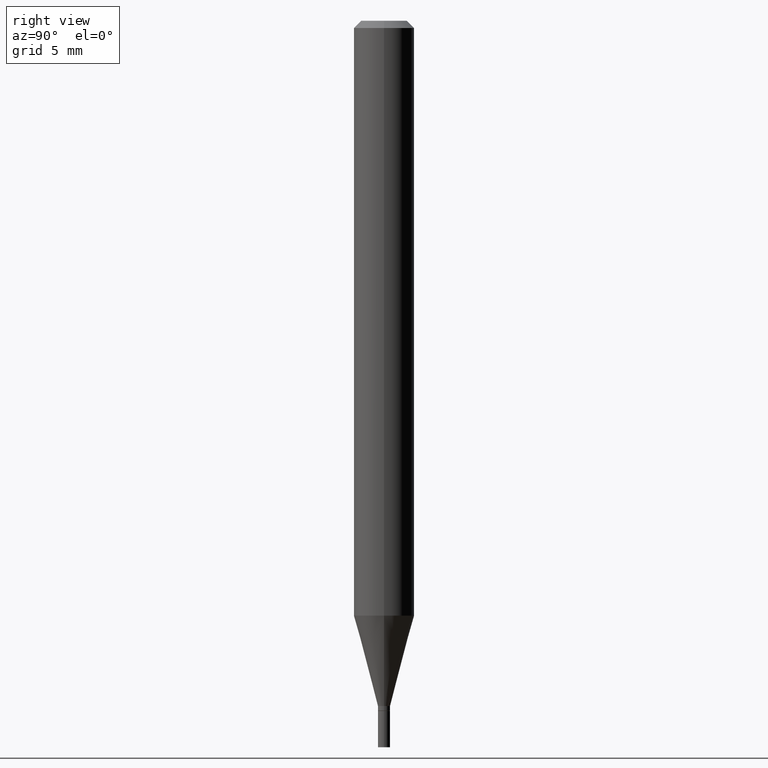
[diagram: clean part render]
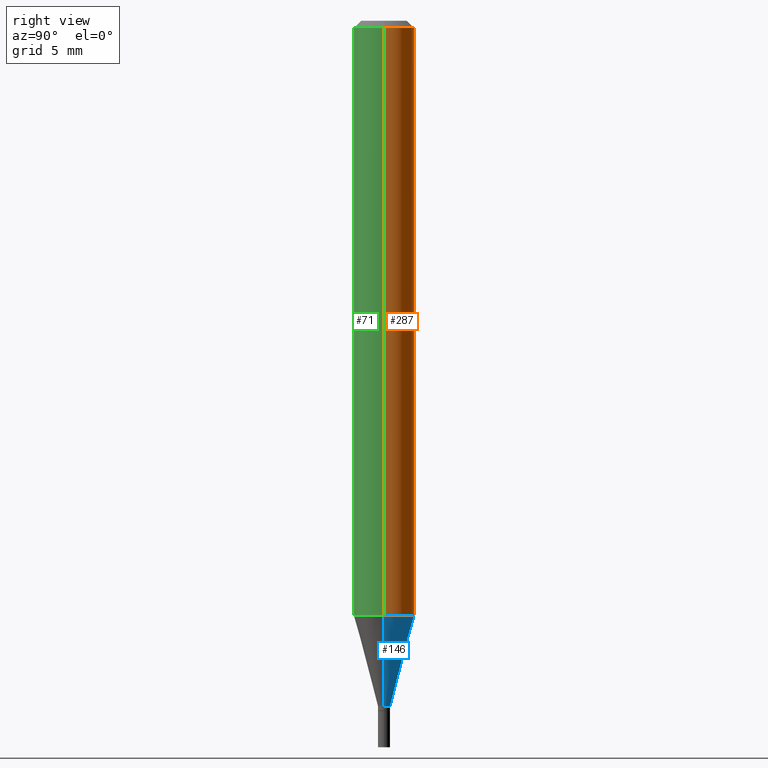
[diagram: same view with three faces highlighted in distinct colors, each labeled with its STEP entity id]
A machine part, right view with three faces highlighted in distinct colors.
Their STEP definitions:

[orange] entity #287 — the highlighted cylindrical surface (edge-blend (fillet) strip) has radius 1.5875 mm, axis along (-0, 0, 1).
#14 = VECTOR ( 'NONE', #387, 39.37007874015748143 ) ;
#19 = CARTESIAN_POINT ( 'NONE',  ( 0.06250000000000001388, -4.725361974306381794E-15, -1.228397459621556109 ) ) ;
#25 = CIRCLE ( 'NONE', #425, 0.06250000000000000000 ) ;
#59 = EDGE_LOOP ( 'NONE', ( #331, #290, #181, #370 ) ) ;
#68 = CYLINDRICAL_SURFACE ( 'NONE', #183, 0.06250000000000000000 ) ;
#70 = LINE ( 'NONE', #383, #14 ) ;
#131 = DIRECTION ( 'NONE',  ( -2.445468806185136877E-29, 3.491481338843145188E-15, 1.000000000000000000 ) ) ;
#134 = DIRECTION ( 'NONE',  ( -2.445468806185136597E-29, 3.491481338843145583E-15, 1.000000000000000000 ) ) ;
#166 = LINE ( 'NONE', #424, #365 ) ;
#172 = CARTESIAN_POINT ( 'NONE',  ( 0.06250000000000000000, -4.888073874380388472E-16, -0.01499999999999999944 ) ) ;
#174 = CARTESIAN_POINT ( 'NONE',  ( -0.06250000000000000000, -1.726560303666755986E-15, -0.01499999999999999944 ) ) ;
#179 = DIRECTION ( 'NONE',  ( 1.000000000000000000, -6.982962677686262766E-15, 0.000000000000000000 ) ) ;
#181 = ORIENTED_EDGE ( 'NONE', *, *, #252, .F. ) ;
#183 = AXIS2_PLACEMENT_3D ( 'NONE', #339, #134, #304 ) ;
#195 = CARTESIAN_POINT ( 'NONE',  ( -0.06250000000000001388, -3.844837597100926719E-15, -1.228397459621556109 ) ) ;
#216 = DIRECTION ( 'NONE',  ( 1.000000000000000000, -6.982962677686266711E-15, 0.000000000000000000 ) ) ;
#231 = AXIS2_PLACEMENT_3D ( 'NONE', #244, #255, #216 ) ;
#244 = CARTESIAN_POINT ( 'NONE',  ( 3.668203209277705088E-31, -5.237222008264718399E-17, -0.01499999999999999944 ) ) ;
#245 = DIRECTION ( 'NONE',  ( -2.445468806185136597E-29, 3.491481338843145583E-15, 1.000000000000000000 ) ) ;
#252 = EDGE_CURVE ( 'NONE', #422, #441, #389, .T. ) ;
#255 = DIRECTION ( 'NONE',  ( -2.445468806185136597E-29, 3.491481338843145583E-15, 1.000000000000000000 ) ) ;
#276 = EDGE_CURVE ( 'NONE', #335, #441, #70, .T. ) ;
#279 = FACE_OUTER_BOUND ( 'NONE', #59, .T. ) ;
#287 = ADVANCED_FACE ( 'NONE', ( #279 ), #68, .T. ) ;
#290 = ORIENTED_EDGE ( 'NONE', *, *, #276, .T. ) ;
#292 = VERTEX_POINT ( 'NONE', #19 ) ;
#304 = DIRECTION ( 'NONE',  ( 1.000000000000000000, -6.982962677686266711E-15, 4.876176775795935793E-29 ) ) ;
#314 = CARTESIAN_POINT ( 'NONE',  ( 3.004007669101581496E-29, -4.288926806950990124E-15, -1.228397459621556109 ) ) ;
#331 = ORIENTED_EDGE ( 'NONE', *, *, #438, .T. ) ;
#335 = VERTEX_POINT ( 'NONE', #195 ) ;
#336 = EDGE_CURVE ( 'NONE', #292, #422, #166, .T. ) ;
#339 = CARTESIAN_POINT ( 'NONE',  ( 0.000000000000000000, 0.000000000000000000, 0.000000000000000000 ) ) ;
#365 = VECTOR ( 'NONE', #131, 39.37007874015748143 ) ;
#370 = ORIENTED_EDGE ( 'NONE', *, *, #336, .F. ) ;
#383 = CARTESIAN_POINT ( 'NONE',  ( -0.06250000000000000000, 4.440892098500626162E-16, -3.074334431409316114E-30 ) ) ;
#387 = DIRECTION ( 'NONE',  ( -2.445468806185136877E-29, 3.491481338843145188E-15, 1.000000000000000000 ) ) ;
#389 = CIRCLE ( 'NONE', #231, 0.06250000000000000000 ) ;
#422 = VERTEX_POINT ( 'NONE', #172 ) ;
#424 = CARTESIAN_POINT ( 'NONE',  ( 0.06250000000000000000, -4.364351673553916694E-16, 3.047610484872459871E-30 ) ) ;
#425 = AXIS2_PLACEMENT_3D ( 'NONE', #314, #245, #179 ) ;
#438 = EDGE_CURVE ( 'NONE', #292, #335, #25, .T. ) ;
#441 = VERTEX_POINT ( 'NONE', #174 ) ;

[blue] entity #146 — the highlighted conical surface has half-angle 15 deg.
#15 = ORIENTED_EDGE ( 'NONE', *, *, #140, .F. ) ;
#19 = CARTESIAN_POINT ( 'NONE',  ( 0.06250000000000001388, -4.725361974306381794E-15, -1.228397459621556109 ) ) ;
#25 = CIRCLE ( 'NONE', #425, 0.06250000000000000000 ) ;
#40 = LINE ( 'NONE', #141, #445 ) ;
#47 = AXIS2_PLACEMENT_3D ( 'NONE', #306, #309, #98 ) ;
#66 = VERTEX_POINT ( 'NONE', #228 ) ;
#67 = DIRECTION ( 'NONE',  ( 0.2588190451025211281, 1.565188264969623940E-15, 0.9659258262890682012 ) ) ;
#87 = CONICAL_SURFACE ( 'NONE', #262, 0.01249999999999992437, 0.2617993877991497964 ) ;
#88 = FACE_OUTER_BOUND ( 'NONE', #256, .T. ) ;
#98 = DIRECTION ( 'NONE',  ( 1.000000000000000000, -6.982962677686258822E-15, 0.000000000000000000 ) ) ;
#122 = ORIENTED_EDGE ( 'NONE', *, *, #348, .T. ) ;
#140 = EDGE_CURVE ( 'NONE', #66, #292, #275, .T. ) ;
#141 = CARTESIAN_POINT ( 'NONE',  ( -0.01249999999999992437, -4.851628252493038529E-15, -1.415000000000000036 ) ) ;
#146 = ADVANCED_FACE ( 'NONE', ( #88 ), #87, .T. ) ;
#151 = ORIENTED_EDGE ( 'NONE', *, *, #180, .T. ) ;
#175 = DIRECTION ( 'NONE',  ( -0.2588190451025211281, 5.211531920934548675E-15, 0.9659258262890682012 ) ) ;
#179 = DIRECTION ( 'NONE',  ( 1.000000000000000000, -6.982962677686262766E-15, 0.000000000000000000 ) ) ;
#180 = EDGE_CURVE ( 'NONE', #439, #335, #40, .T. ) ;
#195 = CARTESIAN_POINT ( 'NONE',  ( -0.06250000000000001388, -3.844837597100926719E-15, -1.228397459621556109 ) ) ;
#197 = CIRCLE ( 'NONE', #47, 0.01249999999999992437 ) ;
#222 = VECTOR ( 'NONE', #67, 39.37007874015748143 ) ;
#228 = CARTESIAN_POINT ( 'NONE',  ( 0.01249999999999992437, -5.027733127934128282E-15, -1.415000000000000036 ) ) ;
#245 = DIRECTION ( 'NONE',  ( -2.445468806185136597E-29, 3.491481338843145583E-15, 1.000000000000000000 ) ) ;
#256 = EDGE_LOOP ( 'NONE', ( #122, #151, #406, #15 ) ) ;
#262 = AXIS2_PLACEMENT_3D ( 'NONE', #419, #377, #310 ) ;
#275 = LINE ( 'NONE', #385, #222 ) ;
#292 = VERTEX_POINT ( 'NONE', #19 ) ;
#306 = CARTESIAN_POINT ( 'NONE',  ( 3.460338360751968441E-29, -4.940446094463050737E-15, -1.415000000000000036 ) ) ;
#309 = DIRECTION ( 'NONE',  ( -2.445468806185136597E-29, 3.491481338843145583E-15, 1.000000000000000000 ) ) ;
#310 = DIRECTION ( 'NONE',  ( 1.000000000000000000, -6.982962677686258822E-15, 0.000000000000000000 ) ) ;
#314 = CARTESIAN_POINT ( 'NONE',  ( 3.004007669101581496E-29, -4.288926806950990124E-15, -1.228397459621556109 ) ) ;
#335 = VERTEX_POINT ( 'NONE', #195 ) ;
#348 = EDGE_CURVE ( 'NONE', #66, #439, #197, .T. ) ;
#360 = CARTESIAN_POINT ( 'NONE',  ( -0.01249999999999992437, -4.348232924796983019E-15, -1.415000000000000036 ) ) ;
#377 = DIRECTION ( 'NONE',  ( -2.445468806185136597E-29, 3.491481338843145583E-15, 1.000000000000000000 ) ) ;
#385 = CARTESIAN_POINT ( 'NONE',  ( 0.01249999999999992437, -5.027733127934128282E-15, -1.415000000000000036 ) ) ;
#406 = ORIENTED_EDGE ( 'NONE', *, *, #438, .F. ) ;
#419 = CARTESIAN_POINT ( 'NONE',  ( 3.460338360751968441E-29, -4.940446094463050737E-15, -1.415000000000000036 ) ) ;
#425 = AXIS2_PLACEMENT_3D ( 'NONE', #314, #245, #179 ) ;
#438 = EDGE_CURVE ( 'NONE', #292, #335, #25, .T. ) ;
#439 = VERTEX_POINT ( 'NONE', #360 ) ;
#445 = VECTOR ( 'NONE', #175, 39.37007874015748143 ) ;

[green] entity #71 — the highlighted cylindrical surface (edge-blend (fillet) strip) has radius 1.5875 mm, axis along (-0, 0, 1).
#4 = ORIENTED_EDGE ( 'NONE', *, *, #321, .T. ) ;
#14 = VECTOR ( 'NONE', #387, 39.37007874015748143 ) ;
#19 = CARTESIAN_POINT ( 'NONE',  ( 0.06250000000000001388, -4.725361974306381794E-15, -1.228397459621556109 ) ) ;
#31 = CYLINDRICAL_SURFACE ( 'NONE', #64, 0.06250000000000000000 ) ;
#42 = AXIS2_PLACEMENT_3D ( 'NONE', #242, #92, #164 ) ;
#64 = AXIS2_PLACEMENT_3D ( 'NONE', #196, #162, #126 ) ;
#71 = ADVANCED_FACE ( 'NONE', ( #193 ), #31, .T. ) ;
#70 = LINE ( 'NONE', #383, #14 ) ;
#92 = DIRECTION ( 'NONE',  ( -2.445468806185136597E-29, 3.491481338843145583E-15, 1.000000000000000000 ) ) ;
#126 = DIRECTION ( 'NONE',  ( 1.000000000000000000, -6.982962677686266711E-15, 4.876176775795935793E-29 ) ) ;
#131 = DIRECTION ( 'NONE',  ( -2.445468806185136877E-29, 3.491481338843145188E-15, 1.000000000000000000 ) ) ;
#135 = ORIENTED_EDGE ( 'NONE', *, *, #336, .T. ) ;
#143 = EDGE_CURVE ( 'NONE', #441, #422, #170, .T. ) ;
#156 = DIRECTION ( 'NONE',  ( 1.000000000000000000, -6.982962677686266711E-15, 0.000000000000000000 ) ) ;
#162 = DIRECTION ( 'NONE',  ( -2.445468806185136597E-29, 3.491481338843145583E-15, 1.000000000000000000 ) ) ;
#164 = DIRECTION ( 'NONE',  ( 1.000000000000000000, -6.982962677686262766E-15, 0.000000000000000000 ) ) ;
#166 = LINE ( 'NONE', #424, #365 ) ;
#170 = CIRCLE ( 'NONE', #373, 0.06250000000000000000 ) ;
#172 = CARTESIAN_POINT ( 'NONE',  ( 0.06250000000000000000, -4.888073874380388472E-16, -0.01499999999999999944 ) ) ;
#174 = CARTESIAN_POINT ( 'NONE',  ( -0.06250000000000000000, -1.726560303666755986E-15, -0.01499999999999999944 ) ) ;
#185 = ORIENTED_EDGE ( 'NONE', *, *, #276, .F. ) ;
#193 = FACE_OUTER_BOUND ( 'NONE', #300, .T. ) ;
#195 = CARTESIAN_POINT ( 'NONE',  ( -0.06250000000000001388, -3.844837597100926719E-15, -1.228397459621556109 ) ) ;
#196 = CARTESIAN_POINT ( 'NONE',  ( 0.000000000000000000, 0.000000000000000000, 0.000000000000000000 ) ) ;
#200 = DIRECTION ( 'NONE',  ( -2.445468806185136597E-29, 3.491481338843145583E-15, 1.000000000000000000 ) ) ;
#242 = CARTESIAN_POINT ( 'NONE',  ( 3.004007669101581496E-29, -4.288926806950990124E-15, -1.228397459621556109 ) ) ;
#276 = EDGE_CURVE ( 'NONE', #335, #441, #70, .T. ) ;
#277 = CIRCLE ( 'NONE', #42, 0.06250000000000000000 ) ;
#292 = VERTEX_POINT ( 'NONE', #19 ) ;
#300 = EDGE_LOOP ( 'NONE', ( #185, #4, #135, #448 ) ) ;
#321 = EDGE_CURVE ( 'NONE', #335, #292, #277, .T. ) ;
#335 = VERTEX_POINT ( 'NONE', #195 ) ;
#336 = EDGE_CURVE ( 'NONE', #292, #422, #166, .T. ) ;
#365 = VECTOR ( 'NONE', #131, 39.37007874015748143 ) ;
#373 = AXIS2_PLACEMENT_3D ( 'NONE', #412, #200, #156 ) ;
#383 = CARTESIAN_POINT ( 'NONE',  ( -0.06250000000000000000, 4.440892098500626162E-16, -3.074334431409316114E-30 ) ) ;
#387 = DIRECTION ( 'NONE',  ( -2.445468806185136877E-29, 3.491481338843145188E-15, 1.000000000000000000 ) ) ;
#412 = CARTESIAN_POINT ( 'NONE',  ( 3.668203209277705088E-31, -5.237222008264718399E-17, -0.01499999999999999944 ) ) ;
#422 = VERTEX_POINT ( 'NONE', #172 ) ;
#424 = CARTESIAN_POINT ( 'NONE',  ( 0.06250000000000000000, -4.364351673553916694E-16, 3.047610484872459871E-30 ) ) ;
#441 = VERTEX_POINT ( 'NONE', #174 ) ;
#448 = ORIENTED_EDGE ( 'NONE', *, *, #143, .F. ) ;